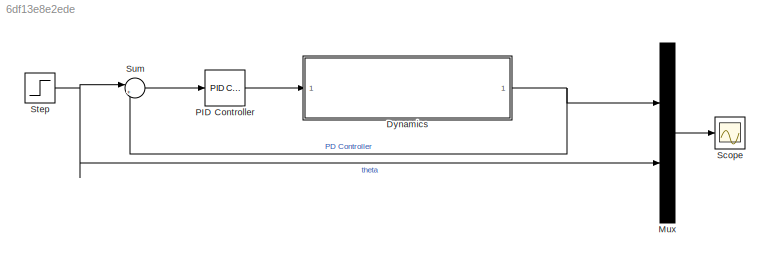
MODEL slx_6df13e8e2ede
KIND model
CONFIG AbsTol = auto
CONFIG EnableMultiTasking = off
CONFIG FixedStep = auto
CONFIG MaxStep = auto
CONFIG MinStep = auto
CONFIG RelTol = 1e-3
CONFIG SampleTimeConstraint = Unconstrained
CONFIG SolverName = VariableStepAuto
CONFIG StartTime = 0.0
CONFIG StopTime = 10.0
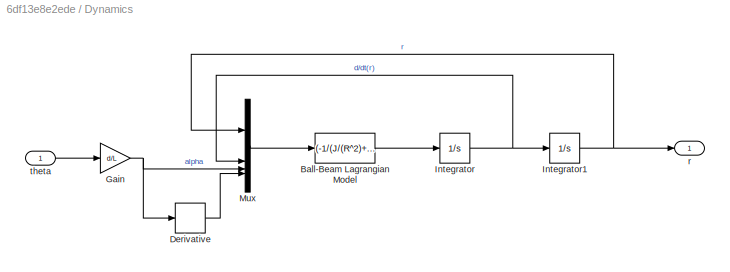
BLOCK [SubSystem] Dynamics
BLOCK [Fcn] Dynamics/Ball-Beam Lagrangian Model
  Expr = (-1/(J/(R^2)+m))*(m*g*sin(u[3])-m*u[1]*(u[4])^2)
BLOCK [Derivative] Dynamics/Derivative
BLOCK [Gain] Dynamics/Gain
  Gain = d/L
BLOCK [Integrator] Dynamics/Integrator
BLOCK [Integrator] Dynamics/Integrator1
BLOCK [Mux] Dynamics/Mux
  DisplayOption = bar
BLOCK [Outport] Dynamics/r
BLOCK [Inport] Dynamics/theta
BLOCK [Mux] Mux
  DisplayOption = bar
  Inputs = 2
BLOCK [Reference] PID Controller  REF=slpidlib/PID Controller
  LibrarySourceBlock = simulink/Continuous/PID Controller
  SourceBlock = slpidlib/PID Controller
  SourceType = PID 1dof
BLOCK [Scope] Scope
  Floating = off
  NumInputPorts = 1
  ScopeSpecificationString = Simulink.scopes.TimeScopeBlockCfg('CurrentConfiguration', extmgr.ConfigurationSet(extmgr.Configuration('Core','General UI',true),extmgr.Configuration('Core','Source UI',true),extmgr.Configuration('Sources','WiredSimulink',true),extmgr.Configuration('Visuals','Time Domain',true,'SerializedDisplays',{struct('MinYLimReal','-0.72372','MaxYLimReal','0.64845','YLabelReal','','MinYLimMag','0.00000','MaxY...<+1372ch>
BLOCK [Step] Step
  After = 0.3
  SampleTime = 0
  Time = 0
BLOCK [Sum] Sum
  Inputs = |+-
LINE Dynamics/Ball-Beam Lagrangian Model:1 -> Dynamics/Integrator:1
LINE Dynamics/Derivative:1 -> Dynamics/Mux:4
NET Dynamics/Gain:1 -> Dynamics/Derivative:1, Dynamics/Mux:3
NET Dynamics/Integrator1:1 -> Dynamics/Mux:1, Dynamics/r:1
NET Dynamics/Integrator:1 -> Dynamics/Integrator1:1, Dynamics/Mux:2
LINE Dynamics/Mux:1 -> Dynamics/Ball-Beam Lagrangian Model:1
LINE Dynamics/theta:1 -> Dynamics/Gain:1
NET Dynamics:1 -> Mux:1, Sum:2
LINE Mux:1 -> Scope:1
LINE PID Controller:1 -> Dynamics:1
NET Step:1 -> Mux:2, Sum:1
LINE Sum:1 -> PID Controller:1
note: NET lines group one-source signal fan-out (src -> all destinations, sorted); 1:1 wires keep LINE
